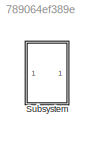
MODEL slx_789064ef389e
KIND model
CONFIG AbsTol = auto
CONFIG EnableMultiTasking = off
CONFIG FixedStep = auto
CONFIG MaxStep = 2^-5
CONFIG MinStep = auto
CONFIG RelTol = 1e-3
CONFIG SampleTimeConstraint = Unconstrained
CONFIG Solver = ode45
CONFIG SolverName = ode45
CONFIG StartTime = 0.0
CONFIG StopTime = 10.0
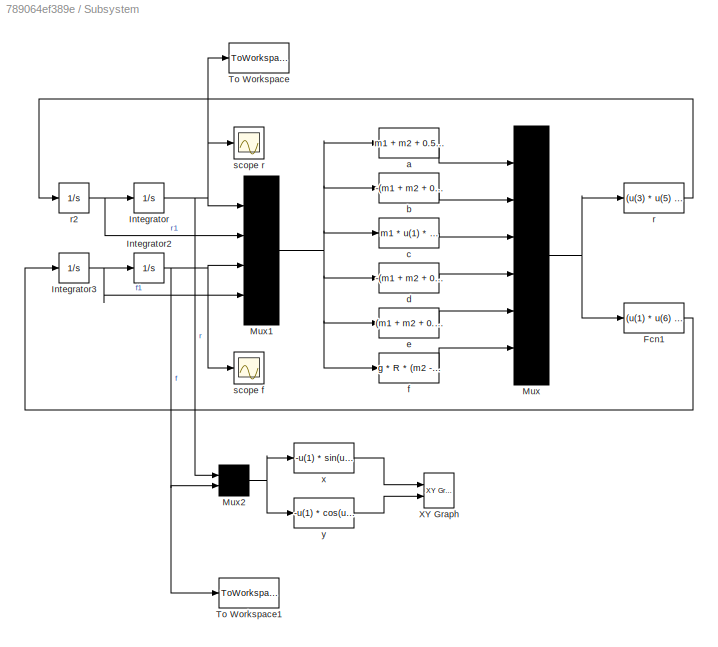
BLOCK [SubSystem] Subsystem
  Ports = []
  RequestExecContextInheritance = off
BLOCK [Fcn] Subsystem/Fcn1
  Expr = (u(1) * u(6) - u(3) * u(4)) / (u(1) * u(5) - u(2) * u(4))
BLOCK [Integrator] Subsystem/Integrator
  InitialCondition = r0
  Ports = [1, 1]
BLOCK [Integrator] Subsystem/Integrator2
  InitialCondition = f0 * pi / 180
  Ports = [1, 1]
BLOCK [Integrator] Subsystem/Integrator3
  Ports = [1, 1]
BLOCK [Mux] Subsystem/Mux
  DisplayOption = bar
  Inputs = 6
  Ports = [6, 1]
BLOCK [Mux] Subsystem/Mux1
  DisplayOption = bar
  Ports = [4, 1]
BLOCK [Mux] Subsystem/Mux2
  DisplayOption = bar
  Inputs = 2
  Ports = [2, 1]
BLOCK [ToWorkspace] Subsystem/To Workspace
  FixptAsFi = on
  MaxDataPoints = inf
  Ports = [1]
  SampleTime = -1
  Save2DSignal = 3-D array (concatenate along third dimension)
  VariableName = r
BLOCK [ToWorkspace] Subsystem/To Workspace1
  FixptAsFi = on
  MaxDataPoints = inf
  Ports = [1]
  SampleTime = -1
  Save2DSignal = 3-D array (concatenate along third dimension)
  VariableName = f
BLOCK [Reference] Subsystem/XY Graph  REF=simulink/Sinks/XY Graph
  Ports = [2]
  SourceBlock = simulink/Sinks/XY Graph
  SourceProductBaseCode = SL
  SourceProductName = Simulink
  SourceType = XY scope.
BLOCK [Fcn] Subsystem/a
  Expr = m1 + m2 + 0.5 * M
BLOCK [Fcn] Subsystem/b
  Expr = -(m1 + m2 + 0.5 * M) * R
BLOCK [Fcn] Subsystem/c
  Expr = m1  * u(1) * u(4) ^ 2 + g * (m1 * cos(u(3)) - m2)
BLOCK [Fcn] Subsystem/d
  Expr = -(m1 + m2 + 0.5 * M) * R
BLOCK [Fcn] Subsystem/e
  Expr = (m1 + m2 + 0.5 * M) * R ^ 2 + m1 * u(1) ^ 2
BLOCK [Fcn] Subsystem/f
  Expr = g * R * (m2 - m1 * cos(u(3))) - m1 * u(1) * (2 * u(2) * u(4) + g * sin(u(3)))
BLOCK [Fcn] Subsystem/r
  Expr = (u(3) * u(5) - u(2) * u(6)) / (u(1) * u(5) - u(2) * u(4))
BLOCK [Integrator] Subsystem/r2
  Ports = [1, 1]
BLOCK [Scope] Subsystem/scope f
  Floating = off
  NumInputPorts = 1
  Ports = [1]
  ScopeSpecificationString = Simulink.scopes.TimeScopeBlockCfg('CurrentConfiguration', extmgr.ConfigurationSet(extmgr.Configuration('Core','General UI',true),extmgr.Configuration('Core','Source UI',true),extmgr.Configuration('Sources','WiredSimulink',true,'DataLoggingVariableName','ScopeData1'),extmgr.Configuration('Visuals','Time Domain',true,'SerializedDisplays',{struct('MinYLimReal','-8.93081','MaxYLimReal','2.73764','YLab...<+1390ch>
BLOCK [Scope] Subsystem/scope r
  Floating = off
  NumInputPorts = 1
  Ports = [1]
  ScopeSpecificationString = Simulink.scopes.TimeScopeBlockCfg('CurrentConfiguration', extmgr.ConfigurationSet(extmgr.Configuration('Core','General UI',true),extmgr.Configuration('Core','Source UI',true),extmgr.Configuration('Sources','WiredSimulink',true),extmgr.Configuration('Visuals','Time Domain',true,'SerializedDisplays',{struct('MinYLimReal','0.23891','MaxYLimReal','1.39532','YLabelReal','','MinYLimMag','0.23891','MaxYL...<+1348ch>
BLOCK [Fcn] Subsystem/x
  Expr = -u(1) * sin(u(2))
BLOCK [Fcn] Subsystem/y
  Expr = -u(1) * cos(u(2))
LINE Subsystem/Fcn1:1 -> Subsystem/Integrator3:1
NET Subsystem/Integrator2:1 -> Subsystem/Mux1:3, Subsystem/Mux2:2, Subsystem/To Workspace1:1, Subsystem/scope f:1
NET Subsystem/Integrator3:1 -> Subsystem/Integrator2:1, Subsystem/Mux1:4
NET Subsystem/Integrator:1 -> Subsystem/Mux1:1, Subsystem/Mux2:1, Subsystem/To Workspace:1, Subsystem/scope r:1
NET Subsystem/Mux1:1 -> Subsystem/a:1, Subsystem/b:1, Subsystem/c:1, Subsystem/d:1, Subsystem/e:1, Subsystem/f:1
NET Subsystem/Mux2:1 -> Subsystem/x:1, Subsystem/y:1
NET Subsystem/Mux:1 -> Subsystem/Fcn1:1, Subsystem/r:1
LINE Subsystem/a:1 -> Subsystem/Mux:1
LINE Subsystem/b:1 -> Subsystem/Mux:2
LINE Subsystem/c:1 -> Subsystem/Mux:3
LINE Subsystem/d:1 -> Subsystem/Mux:4
LINE Subsystem/e:1 -> Subsystem/Mux:5
LINE Subsystem/f:1 -> Subsystem/Mux:6
NET Subsystem/r2:1 -> Subsystem/Integrator:1, Subsystem/Mux1:2
LINE Subsystem/r:1 -> Subsystem/r2:1
LINE Subsystem/x:1 -> Subsystem/XY Graph:1
LINE Subsystem/y:1 -> Subsystem/XY Graph:2
note: NET lines group one-source signal fan-out (src -> all destinations, sorted); 1:1 wires keep LINE
